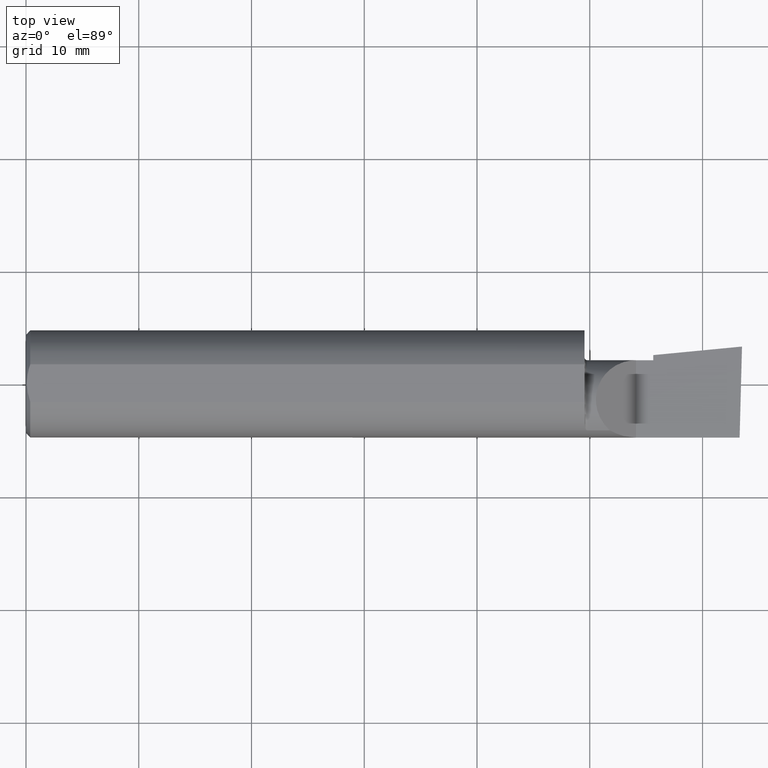
[diagram: clean part render]
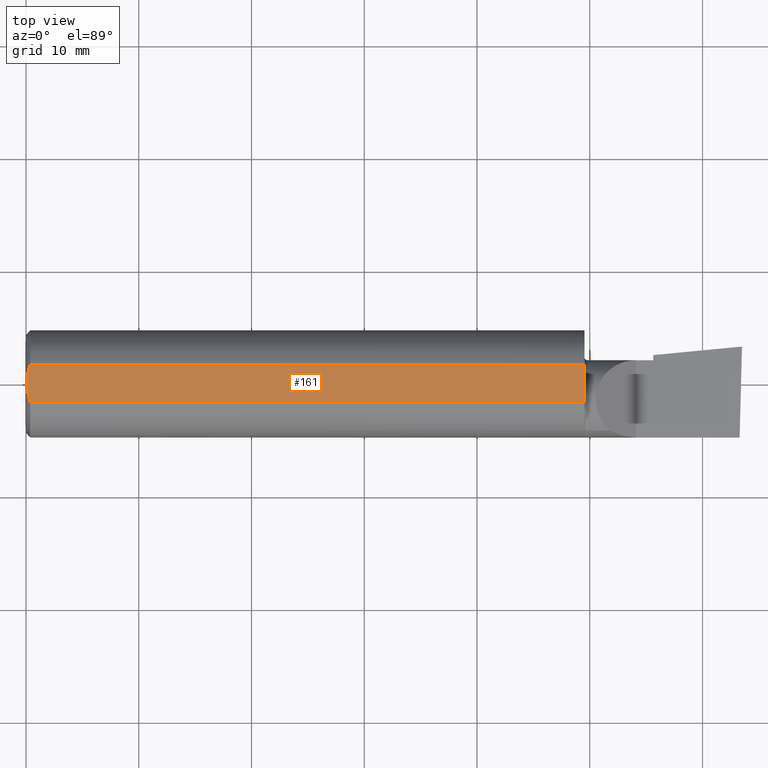
[diagram: same view with one face highlighted and labeled with its STEP entity id]
A machine part, top view. The second image highlights one B-rep face of the part: STEP entity #161.
In plain terms, the highlighted planar face has unit normal (0, -0, -1).
Its self-contained STEP definition (entity closure, byte-faithful):
#8 = CARTESIAN_POINT ( 'NONE',  ( 0.000000000000000000, -0.06597272163553657975, 0.1753499999999999781 ) ) ;
#29 = CARTESIAN_POINT ( 'NONE',  ( 1.949999999999999956, -0.06597272163553659363, 0.1753499999999999781 ) ) ;
#39 = CARTESIAN_POINT ( 'NONE',  ( 0.004115035183746292881, 0.02255629470626744487, 0.1753499999999999781 ) ) ;
#71 = CARTESIAN_POINT ( 'NONE',  ( 0.003000000000000218638, 2.334609556160449697E-17, 0.1753499999999999781 ) ) ;
#74 = CARTESIAN_POINT ( 'NONE',  ( 1.949999999999999956, 0.06597272163553663527, 0.1753499999999999781 ) ) ;
#82 = EDGE_LOOP ( 'NONE', ( #362, #237, #171, #314, #98 ) ) ;
#98 = ORIENTED_EDGE ( 'NONE', *, *, #544, .F. ) ;
#116 = CARTESIAN_POINT ( 'NONE',  ( 1.949999999999999956, 0.2373500000000000332, 0.1753499999999999504 ) ) ;
#143 = DIRECTION ( 'NONE',  ( 1.000000000000000000, 0.000000000000000000, 0.000000000000000000 ) ) ;
#151 = LINE ( 'NONE', #238, #553 ) ;
#161 = ADVANCED_FACE ( 'NONE', ( #316 ), #499, .F. ) ;
#171 = ORIENTED_EDGE ( 'NONE', *, *, #390, .F. ) ;
#180 = VERTEX_POINT ( 'NONE', #450 ) ;
#198 = CARTESIAN_POINT ( 'NONE',  ( 0.003000000000000218638, 2.334609556160449697E-17, 0.1753499999999999781 ) ) ;
#221 = CARTESIAN_POINT ( 'NONE',  ( 0.01499999999999997863, -0.06597272163553657975, 0.1753499999999999781 ) ) ;
#227 = VERTEX_POINT ( 'NONE', #29 ) ;
#235 = CARTESIAN_POINT ( 'NONE',  ( 0.008244775919947424855, 0.04453482769755855164, 0.1753499999999999504 ) ) ;
#237 = ORIENTED_EDGE ( 'NONE', *, *, #426, .F. ) ;
#238 = CARTESIAN_POINT ( 'NONE',  ( 0.000000000000000000, 0.06597272163553663527, 0.1753499999999999781 ) ) ;
#240 = CARTESIAN_POINT ( 'NONE',  ( 0.01499999999999999424, 0.06597272163553663527, 0.1753499999999999781 ) ) ;
#248 = AXIS2_PLACEMENT_3D ( 'NONE', #260, #255, #319 ) ;
#255 = DIRECTION ( 'NONE',  ( 0.000000000000000000, -1.438723400918613551E-16, -1.000000000000000000 ) ) ;
#259 = LINE ( 'NONE', #116, #586 ) ;
#260 = CARTESIAN_POINT ( 'NONE',  ( 2.500000000000000000, 0.2373500000000000332, 0.1753499999999999504 ) ) ;
#270 = CARTESIAN_POINT ( 'NONE',  ( 0.003000000000000172667, -0.01126410975715121283, 0.1753500000000000059 ) ) ;
#305 = B_SPLINE_CURVE_WITH_KNOTS ( 'NONE', 3,
 ( #221, #412, #415, #505, #270, #71 ),
 .UNSPECIFIED., .F., .F.,
 ( 4, 2, 4 ),
 ( 0.001779942938356815062, 0.002629978419973711019, 0.003480013901590607410 ),
 .UNSPECIFIED. ) ;
#314 = ORIENTED_EDGE ( 'NONE', *, *, #615, .F. ) ;
#316 = FACE_OUTER_BOUND ( 'NONE', #82, .T. ) ;
#319 = DIRECTION ( 'NONE',  ( 0.000000000000000000, 1.000000000000000000, -1.438723400918613551E-16 ) ) ;
#321 = B_SPLINE_CURVE_WITH_KNOTS ( 'NONE', 3,
 ( #198, #506, #39, #235, #475, #240 ),
 .UNSPECIFIED., .F., .F.,
 ( 4, 2, 4 ),
 ( 0.003480013901590607410, 0.004330767971208083697, 0.005181522040825559984 ),
 .UNSPECIFIED. ) ;
#345 = CARTESIAN_POINT ( 'NONE',  ( 0.01499999999999997863, -0.06597272163553657975, 0.1753499999999999781 ) ) ;
#362 = ORIENTED_EDGE ( 'NONE', *, *, #500, .F. ) ;
#389 = DIRECTION ( 'NONE',  ( 6.829619984160658046E-18, -1.000000000000000000, 1.438723400918613551E-16 ) ) ;
#390 = EDGE_CURVE ( 'NONE', #622, #180, #321, .T. ) ;
#412 = CARTESIAN_POINT ( 'NONE',  ( 0.01128414053810044941, -0.05542038647445821781, 0.1753499999999999781 ) ) ;
#415 = CARTESIAN_POINT ( 'NONE',  ( 0.008227791779583789808, -0.04447712204611815878, 0.1753499999999999781 ) ) ;
#426 = EDGE_CURVE ( 'NONE', #180, #614, #151, .T. ) ;
#438 = LINE ( 'NONE', #8, #444 ) ;
#444 = VECTOR ( 'NONE', #491, 39.37007874015748143 ) ;
#450 = CARTESIAN_POINT ( 'NONE',  ( 0.01499999999999999424, 0.06597272163553663527, 0.1753499999999999781 ) ) ;
#471 = VERTEX_POINT ( 'NONE', #345 ) ;
#475 = CARTESIAN_POINT ( 'NONE',  ( 0.01125230581755086272, 0.05532998191409922023, 0.1753500000000000059 ) ) ;
#491 = DIRECTION ( 'NONE',  ( -1.000000000000000000, -0.000000000000000000, -0.000000000000000000 ) ) ;
#499 = PLANE ( 'NONE',  #248 ) ;
#500 = EDGE_CURVE ( 'NONE', #614, #227, #259, .T. ) ;
#505 = CARTESIAN_POINT ( 'NONE',  ( 0.004093196532652216939, -0.02240707710020816909, 0.1753499999999999504 ) ) ;
#506 = CARTESIAN_POINT ( 'NONE',  ( 0.003000000000000169632, 0.01127363201155560934, 0.1753499999999999781 ) ) ;
#508 = CARTESIAN_POINT ( 'NONE',  ( 0.003000000000000218638, 2.334609556160449697E-17, 0.1753499999999999781 ) ) ;
#544 = EDGE_CURVE ( 'NONE', #227, #471, #438, .T. ) ;
#553 = VECTOR ( 'NONE', #143, 39.37007874015748143 ) ;
#586 = VECTOR ( 'NONE', #389, 39.37007874015748143 ) ;
#614 = VERTEX_POINT ( 'NONE', #74 ) ;
#615 = EDGE_CURVE ( 'NONE', #471, #622, #305, .T. ) ;
#622 = VERTEX_POINT ( 'NONE', #508 ) ;